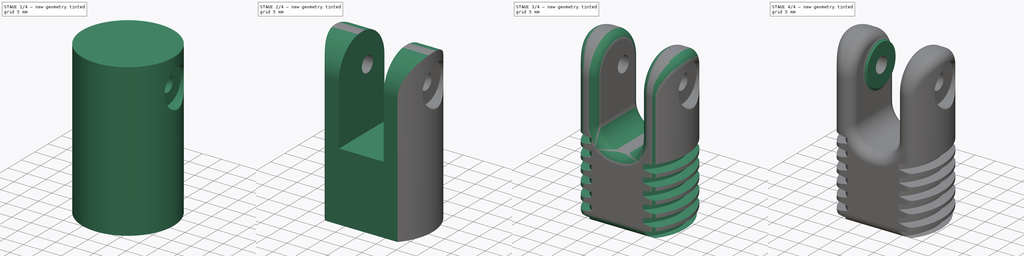
[diagram: build sequence overview — one tinted view per stage of 4, left to right]
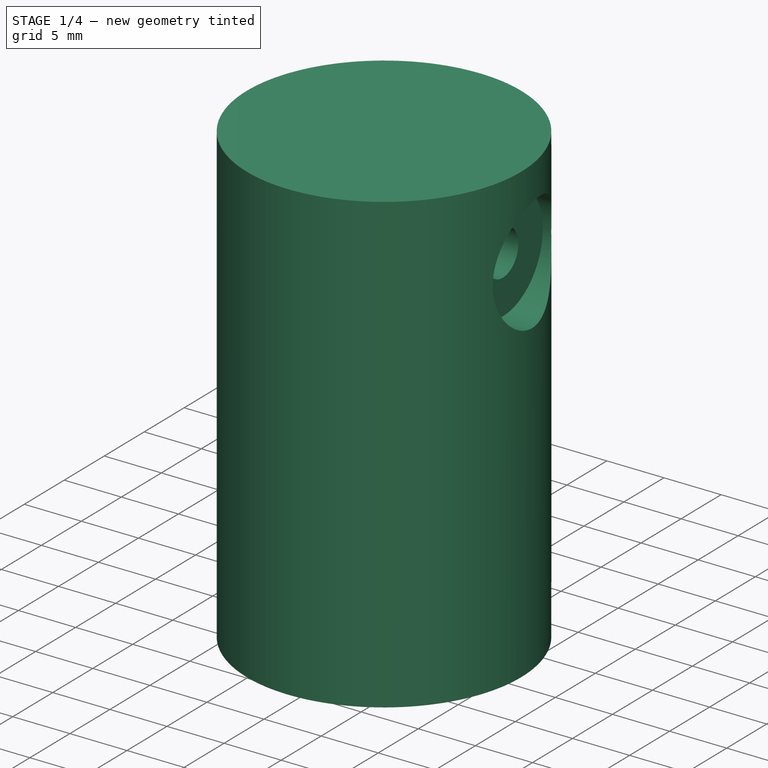
[diagram: stage 1 of 4 — iso view after this stage's code; geometry added in this stage tinted green]
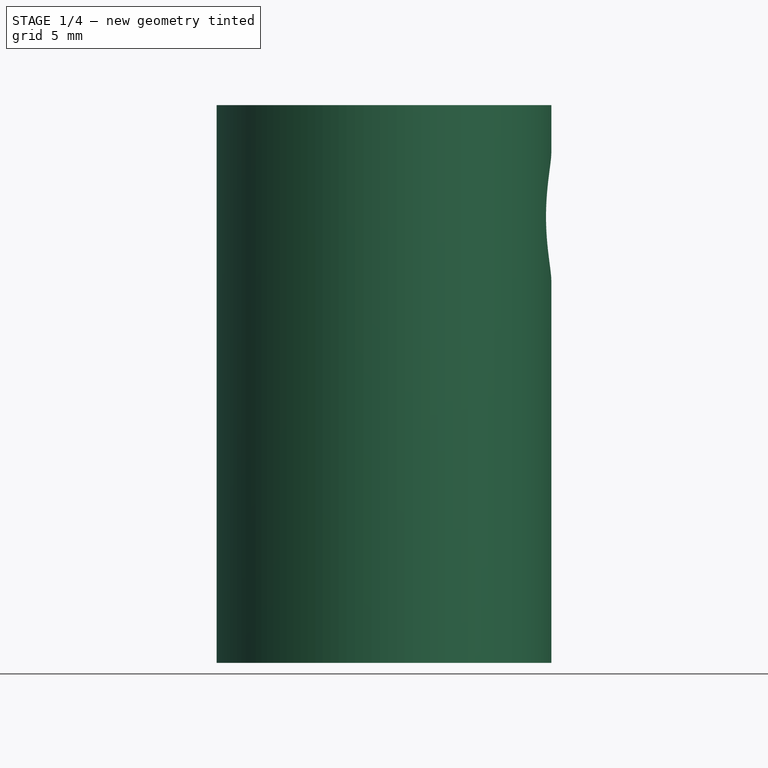
[diagram: stage 1 of 4 — front view after this stage's code; geometry added in this stage tinted green]
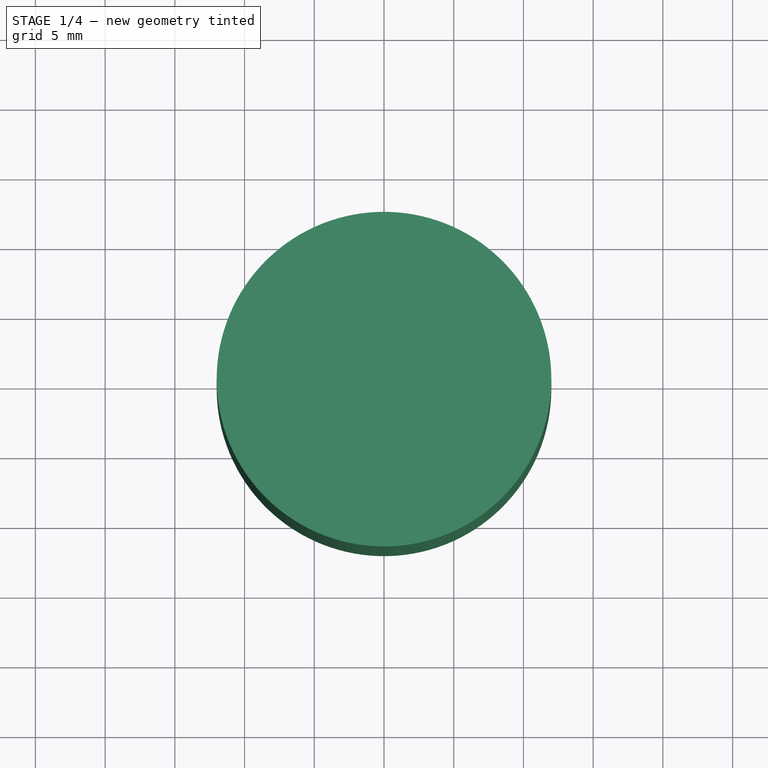
[diagram: stage 1 of 4 — top view after this stage's code; geometry added in this stage tinted green]
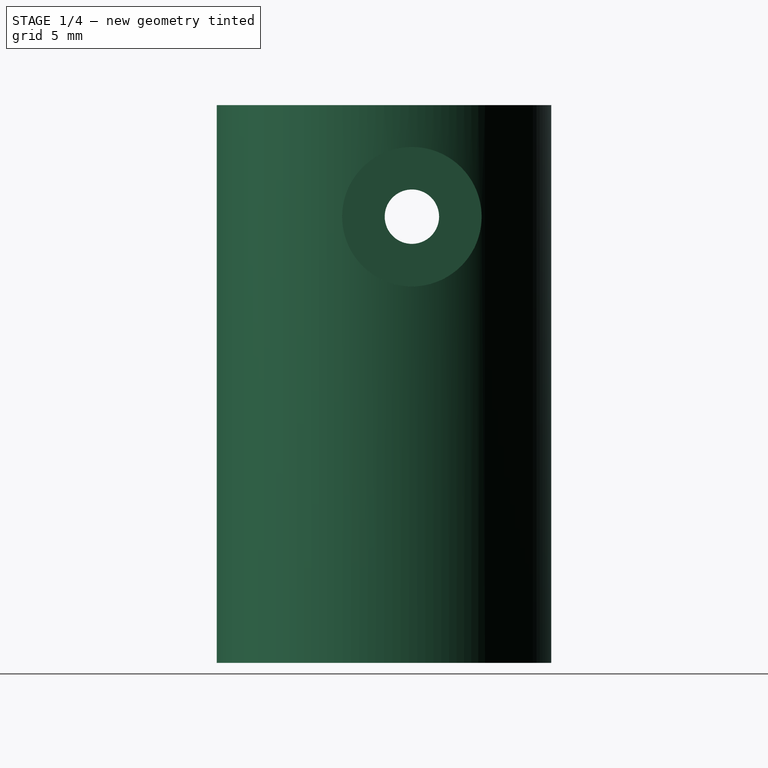
[diagram: stage 1 of 4 — right view after this stage's code; geometry added in this stage tinted green]
FCSTD DOCUMENT  (FreeCAD 1.1R)
Label: screw
License: All rights reserved
LicenseURL: https://en.wikipedia.org/wiki/All_rights_reserved
objects: Sketcher::SketchObject×8, PartDesign::Pocket×4, PartDesign::Fillet×4, PartDesign::Pad×3, App::Point×1, PartDesign::SubtractiveHelix×1, PartDesign::Body×1
note: 53 computed .brp shape members not serialized (recipe doc carries the construction recipe); baked Part::Feature solids carry a one-line shape summary decoded from their .brp

FEATURE [App::Point] Origin001
  Role = Origin
FEATURE [Sketcher::SketchObject] Sketch
  ArcFitTolerance = 1e-06
  AttachmentSupport = -> [Origin]
  ExternalTypes = [0]
  FullyConstrained = true
  MakeInternals = false
  MapMode = 5
  sketch-geometry (1):
    g0: Circle CenterX=0 CenterY=0 CenterZ=0 NormalX=0 NormalY=0 NormalZ=1 AngleXU=0 Radius=12
  constraints (2):
    c: Coincident(g0,g-1)
    c: Diameter(g0) = 24
FEATURE [PartDesign::Pad] Pad  label="base cylinder"
  Direction = (0,0,1)
  Length = 8
  Length2 = 32
  Profile = -> Sketch
  ReferenceAxis = -> Sketch [N_Axis]
  Refine = true
  SideType = 1
  Suppressed = false
  Type = 0
  Type2 = 0
FEATURE [Sketcher::SketchObject] Sketch001
  ArcFitTolerance = 1e-06
  AttachmentSupport = -> [Origin]
  ExternalTypes = [0]
  FullyConstrained = true
  MakeInternals = false
  MapMode = 5
  Placement = pos=(0,0,0) rot=(0.57735,0.57735,0.57735;2.0944rad)
  sketch-geometry (1):
    g0: Circle CenterX=2 CenterY=0 CenterZ=0 NormalX=0 NormalY=0 NormalZ=1 AngleXU=0 Radius=1.95
  constraints (3):
    c: Diameter(g0) = 3.9
    c: PointOnObject(g0,g-1)
    c: DistanceX(g-1,g0) = 2
FEATURE [PartDesign::Pocket] Pocket  label="M4 hole"
  BaseFeature = -> Pad
  Direction = (-1,0,0)
  Length = 63
  Length2 = 5
  Profile = -> Sketch001
  ReferenceAxis = -> Sketch001 [N_Axis]
  Refine = true
  SideType = 2
  Suppressed = false
  Type = 0
  Type2 = 0
FEATURE [Sketcher::SketchObject] Sketch002
  ArcFitTolerance = 1e-06
  AttachmentOffset = pos=(0,0,14) rot=(0,0,1;0rad)
  AttachmentSupport = -> [Origin]
  ExternalTypes = [0]
  FullyConstrained = true
  MakeInternals = false
  MapMode = 5
  Placement = pos=(14,0,0) rot=(0.57735,0.57735,0.57735;2.0944rad)
  sketch-geometry (1):
    g0: Circle CenterX=2 CenterY=0 CenterZ=0 NormalX=0 NormalY=0 NormalZ=1 AngleXU=0 Radius=5
  constraints (3):
    c: Diameter(g0) = 10
    c: PointOnObject(g0,g-1)
    c: DistanceX(g-1,g0) = 2
FEATURE [PartDesign::Pocket] Pocket001  label="M4 Head cavitiy"
  BaseFeature = -> Pocket
  Direction = (-1,0,0)
  Length = 5
  Length2 = 5
  Profile = -> Sketch002
  ReferenceAxis = -> Sketch002 [N_Axis]
  Refine = true
  SideType = 0
  Suppressed = false
  Type = 0
  Type2 = 0
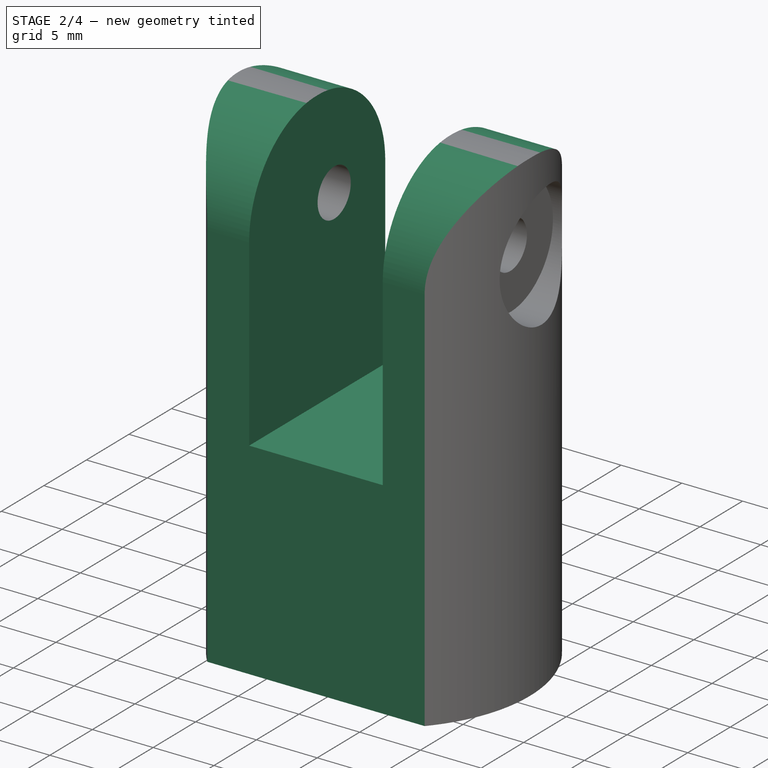
[diagram: stage 2 of 4 — iso view after this stage's code; geometry added in this stage tinted green]
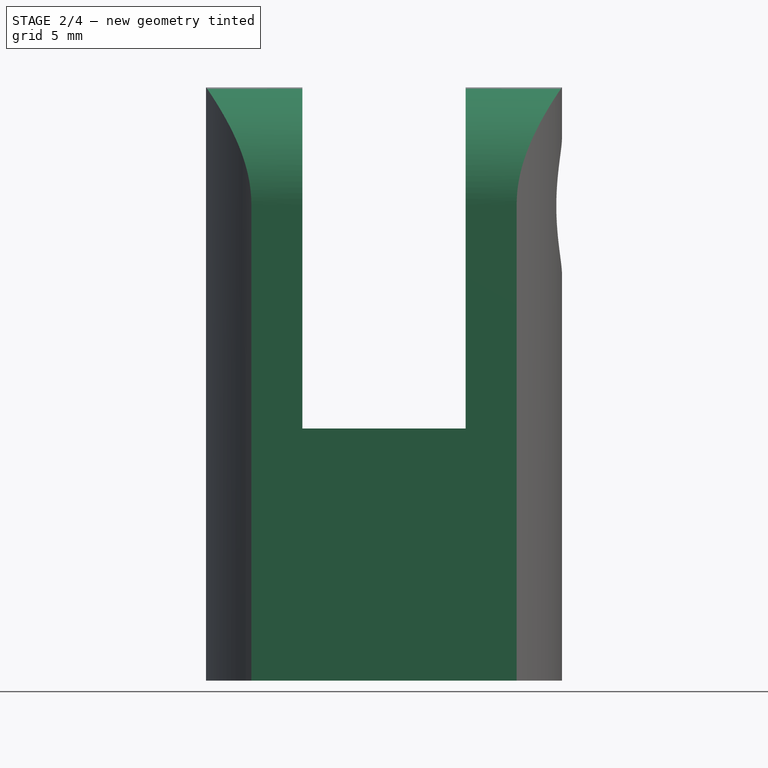
[diagram: stage 2 of 4 — front view after this stage's code; geometry added in this stage tinted green]
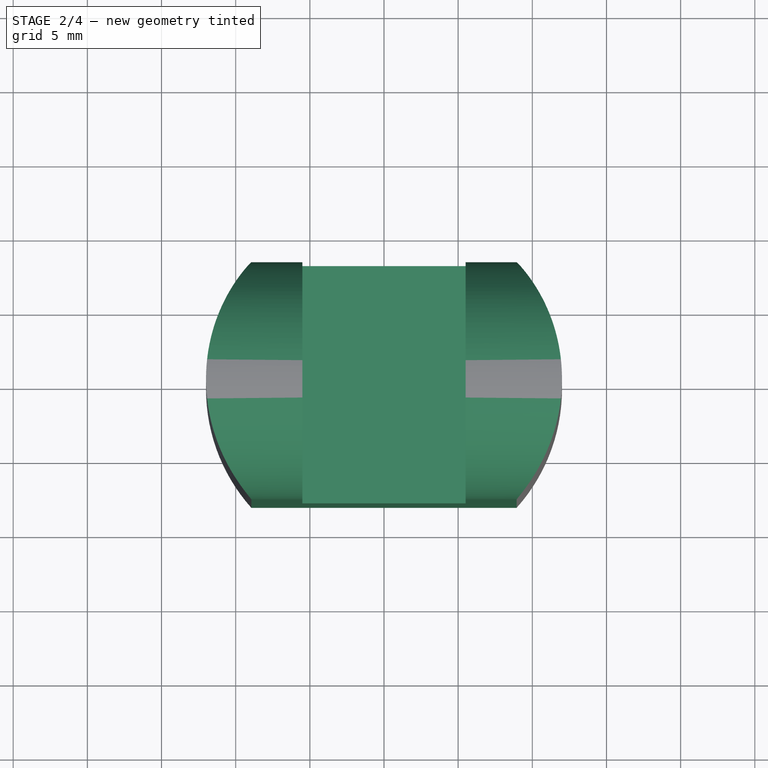
[diagram: stage 2 of 4 — top view after this stage's code; geometry added in this stage tinted green]
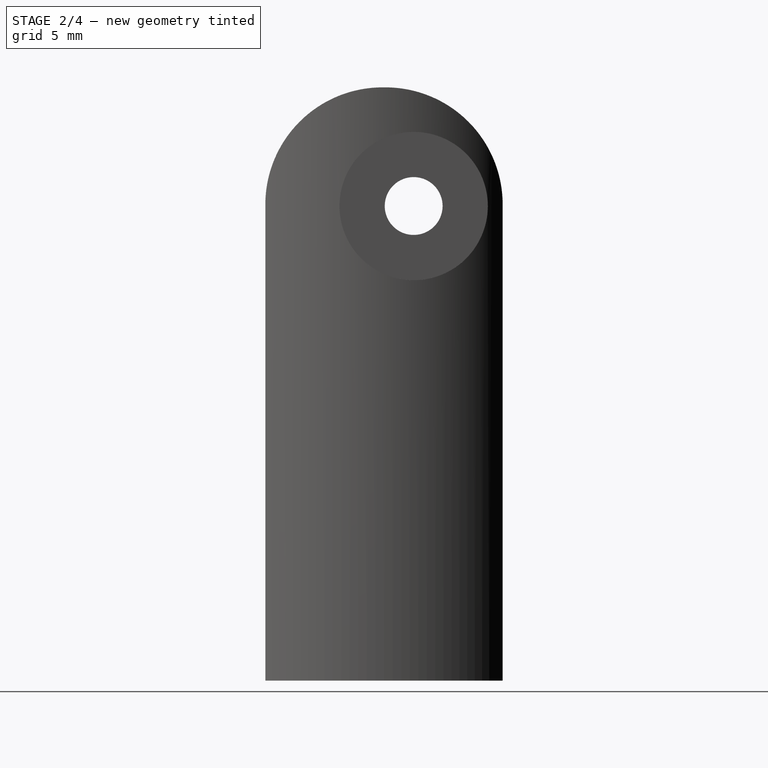
[diagram: stage 2 of 4 — right view after this stage's code; geometry added in this stage tinted green]
FEATURE [Sketcher::SketchObject] Sketch003
  ArcFitTolerance = 1e-06
  AttachmentSupport = -> [Origin]
  ExternalTypes = [0]
  FullyConstrained = true
  MakeInternals = false
  MapMode = 5
  sketch-geometry (4):
    g0: LineSegment StartX=-5.5 StartY=15 StartZ=0 EndX=-5.5 EndY=-15 EndZ=0
    g1: LineSegment StartX=-5.5 StartY=-15 StartZ=0 EndX=5.5 EndY=-15 EndZ=0
    g2: LineSegment StartX=5.5 StartY=-15 StartZ=0 EndX=5.5 EndY=15 EndZ=0
    g3: LineSegment StartX=5.5 StartY=15 StartZ=0 EndX=-5.5 EndY=15 EndZ=0
  constraints (10):
    c: Coincident(g0,g1)
    c: Coincident(g1,g2)
    c: Coincident(g2,g3)
    c: Coincident(g3,g0)
    c: Vertical(g2)
    c: Horizontal(g3)
    c: Symmetric(g1,g0,g-2)
    c: Symmetric(g0,g0,g-1)
    c: DistanceX(g3,g3) = 11
    c: DistanceY(g2,g2) = 30
FEATURE [PartDesign::Pocket] Pocket002  label="Bearing Cutout"
  BaseFeature = -> Pocket001
  Direction = (0,0,-1)
  Length = 15
  Length2 = 12
  Profile = -> Sketch003
  ReferenceAxis = -> Sketch003 [N_Axis]
  Refine = true
  SideType = 1
  Suppressed = false
  Type = 0
  Type2 = 0
FEATURE [Sketcher::SketchObject] Sketch004
  ArcFitTolerance = 1e-06
  AttachmentSupport = -> [Origin]
  ExternalTypes = [0]
  FullyConstrained = true
  MakeInternals = false
  MapMode = 5
  sketch-geometry (12):
    g0: LineSegment StartX=-12.5 StartY=8 StartZ=0 EndX=12.5 EndY=8 EndZ=0
    g1: LineSegment StartX=12.5 StartY=8 StartZ=0 EndX=17.183 EndY=0 EndZ=0
    g2: LineSegment StartX=17.183 StartY=0 StartZ=0 EndX=12.5 EndY=-8 EndZ=0
    g3: LineSegment StartX=12.5 StartY=-8 StartZ=0 EndX=-12.5 EndY=-8 EndZ=0
    g4: LineSegment StartX=-12.5 StartY=-8 StartZ=0 EndX=-17.183 EndY=0 EndZ=0
    g5: LineSegment StartX=-17.183 StartY=0 StartZ=0 EndX=-12.5 EndY=8 EndZ=0
    g6: LineSegment StartX=-24.408 StartY=0 StartZ=0 EndX=-12.141 EndY=20.9557 EndZ=0
    g7: LineSegment StartX=-12.141 StartY=20.9557 StartZ=0 EndX=12.141 EndY=20.9557 EndZ=0
    g8: LineSegment StartX=12.141 StartY=20.9557 StartZ=0 EndX=24.408 EndY=0 EndZ=0
    g9: LineSegment StartX=24.408 StartY=0 StartZ=0 EndX=12.141 EndY=-20.9557 EndZ=0
    g10: LineSegment StartX=12.141 StartY=-20.9557 StartZ=0 EndX=-12.141 EndY=-20.9557 EndZ=0
    g11: LineSegment StartX=-12.141 StartY=-20.9557 StartZ=0 EndX=-24.408 EndY=0 EndZ=0
  constraints (31):
    c: Coincident(g0,g1)
    c: PointOnObject(g1,g-1)
    c: Coincident(g1,g2)
    c: Coincident(g2,g3)
    c: Coincident(g3,g4)
    c: Coincident(g4,g5)
    c: Coincident(g5,g0)
    c: PointOnObject(g6,g-1)
    c: Coincident(g6,g7)
    c: Horizontal(g7)
    c: Coincident(g7,g8)
    c: Parallel(g8,g4)
    c: Coincident(g8,g9)
    c: Coincident(g9,g10)
    c: Horizontal(g10)
    c: Coincident(g10,g11)
    c: Coincident(g11,g6)
    c: Symmetric(g0,g3,g-1)
    c: Symmetric(g1,g4,g-2)
    c: DistanceX(g0,g0) = 25
    c: DistanceY(g3,g0) = 16
    c: Equal(g8,g9)
    c: Equal(g9,g10)
    c: Equal(g10,g11)
    c: Equal(g11,g6)
    c: Equal(g6,g7)
    c: Symmetric(g0,g0,g-2)
    c: Symmetric(g2,g3,g-2)
    c: DistanceX(g-1,g1) = 17.183
    c: DistanceX(g1,g8) = 7.225
    c: Symmetric(g8,g6,g-2)
FEATURE [PartDesign::Pocket] Pocket003  label="Rectangle cut"
  BaseFeature = -> Pocket002
  Direction = (0,0,-1)
  Length = 42
  Length2 = 15
  Profile = -> Sketch004
  ReferenceAxis = -> Sketch004 [N_Axis]
  Refine = true
  SideType = 1
  Suppressed = false
  Type = 0
  Type2 = 0
FEATURE [PartDesign::Fillet] Fillet  label="Top fillet"
  Base = -> Pocket003 [Edge11,Edge16,Edge20,Edge7]
  BaseFeature = -> Pocket003
  Radius = 7.9
  Refine = true
  SupportTransform = false
  Suppressed = false
  UseAllEdges = false
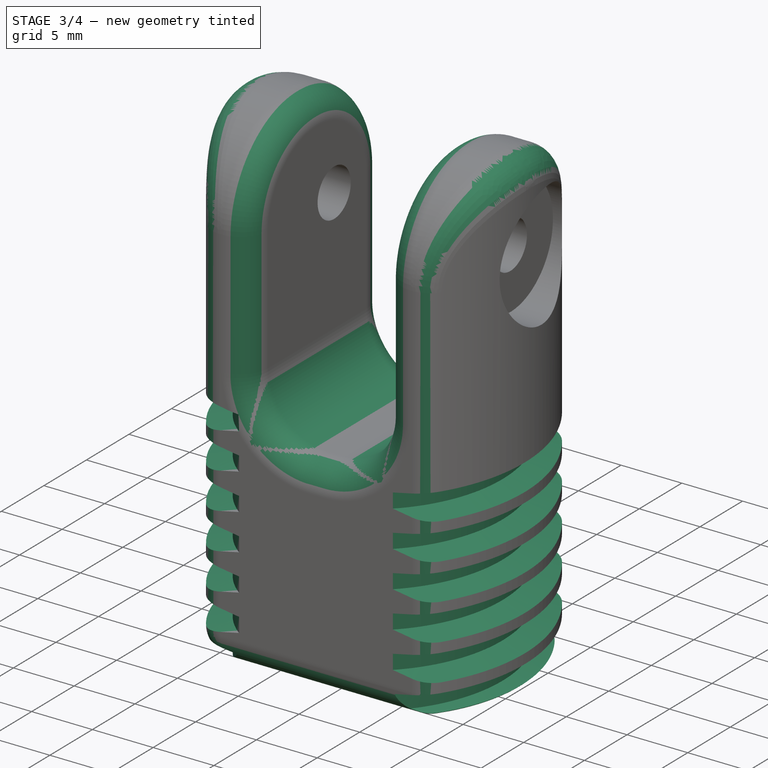
[diagram: stage 3 of 4 — iso view after this stage's code; geometry added in this stage tinted green]
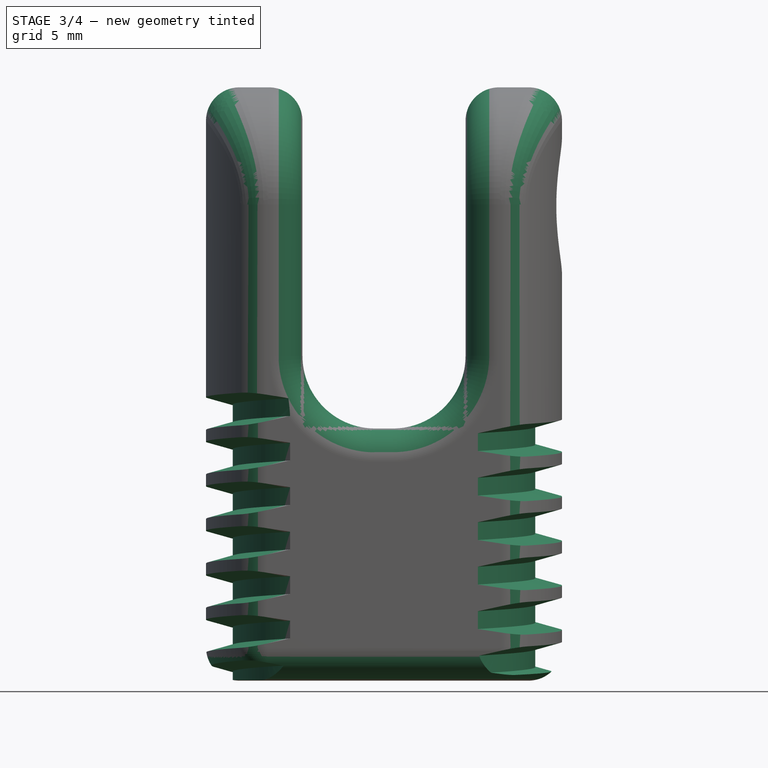
[diagram: stage 3 of 4 — front view after this stage's code; geometry added in this stage tinted green]
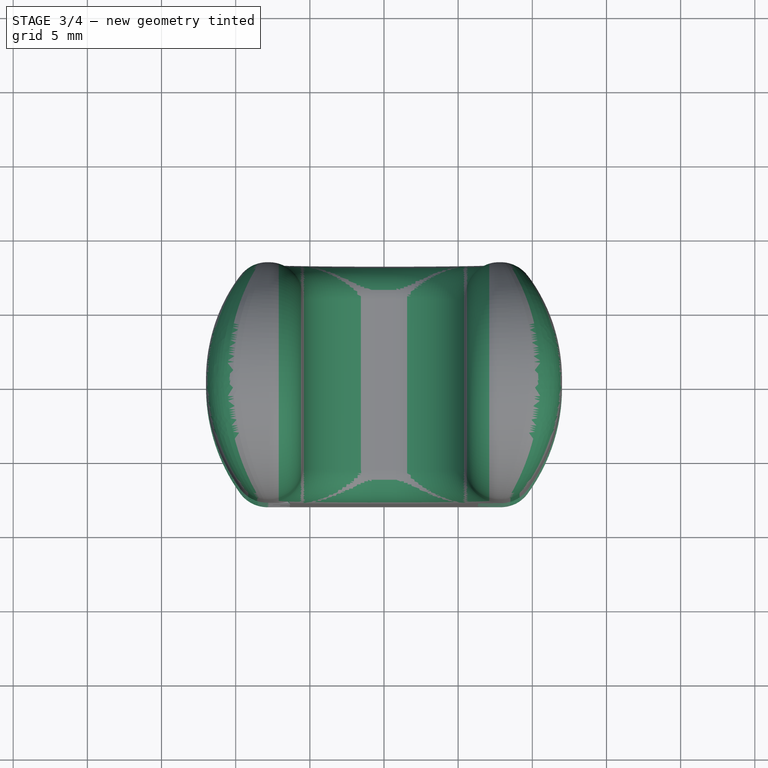
[diagram: stage 3 of 4 — top view after this stage's code; geometry added in this stage tinted green]
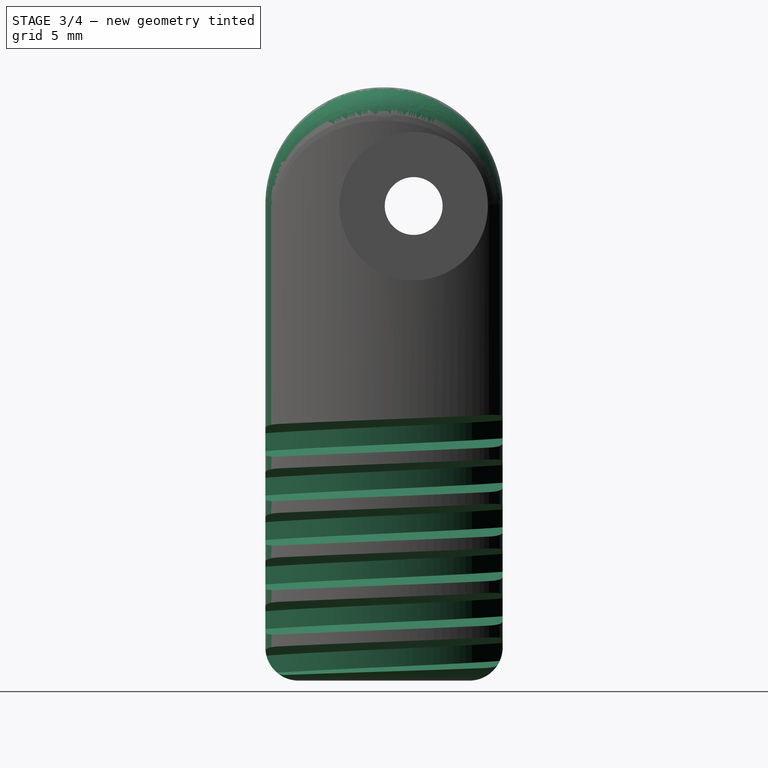
[diagram: stage 3 of 4 — right view after this stage's code; geometry added in this stage tinted green]
FEATURE [PartDesign::Fillet] Fillet001  label="Bearing cut Fillet"
  Base = -> Fillet [Edge34,Edge26]
  BaseFeature = -> Fillet
  Radius = 4.9
  Refine = true
  SupportTransform = false
  Suppressed = false
  UseAllEdges = false
FEATURE [PartDesign::Fillet] Fillet002  label="Outside"
  Base = -> Fillet001 [Edge41,Edge9,Edge43,Edge44,Edge23,Edge24,Edge19,Edge5,Edge7,Edge34,Edge35,Edge25,Edge27,Edge6,Edge2,Edge1,Edge13,Edge18,Edge32,Edge36,Edge37,Edge39]
  BaseFeature = -> Fillet001
  Radius = 2.25
  Refine = true
  SupportTransform = false
  Suppressed = false
  UseAllEdges = false
FEATURE [Sketcher::SketchObject] Sketch005
  ArcFitTolerance = 1e-06
  AttachmentOffset = pos=(0,-6,0) rot=(0,0,1;0rad)
  AttachmentSupport = -> [Origin]
  ExternalTypes = [0]
  FullyConstrained = true
  MakeInternals = false
  MapMode = 5
  Placement = pos=(0,-1.3e-15,-6) rot=(1,0,0;1.5708rad)
  sketch-geometry (4):
    g0: LineSegment StartX=12 StartY=-28.589 StartZ=0 EndX=10.2 EndY=-28.089 EndZ=0
    g1: LineSegment StartX=10.2 StartY=-28.089 StartZ=0 EndX=10.2 EndY=-26.889 EndZ=0
    g2: LineSegment StartX=10.2 StartY=-26.889 StartZ=0 EndX=12 EndY=-26.389 EndZ=0
    g3: LineSegment StartX=12 StartY=-26.389 StartZ=0 EndX=12 EndY=-28.589 EndZ=0
  constraints (12):
    c: Coincident(g0,g1)
    c: Vertical(g1)
    c: Coincident(g1,g2)
    c: Coincident(g2,g3)
    c: Coincident(g3,g0)
    c: Vertical(g3)
    c: DistanceY(g1,g1) = 1.2
    c: Equal(g2,g0)
    c: DistanceY(g3,g3) = 2.2
    c: Distance(g3,g1) = 1.8
    c: Distance(g-2,g1) = 10.2
    c: Distance(g1,g-1) = 26.889
FEATURE [PartDesign::SubtractiveHelix] SubtractiveHelix  label="Thread"
  Angle = 0
  Axis = (0,2e-16,1)
  Base = (0,-1.3e-15,-6)
  BaseFeature = -> Fillet002
  Growth = 0
  HasBeenEdited = true
  Height = 20.38
  LeftHanded = false
  Mode = 0
  Outside = false
  Pitch = 3
  Profile = -> Sketch005
  ReferenceAxis = -> Sketch005 [V_Axis]
  Refine = true
  Suppressed = false
  Tolerance = 0.1
  Turns = 6.79333
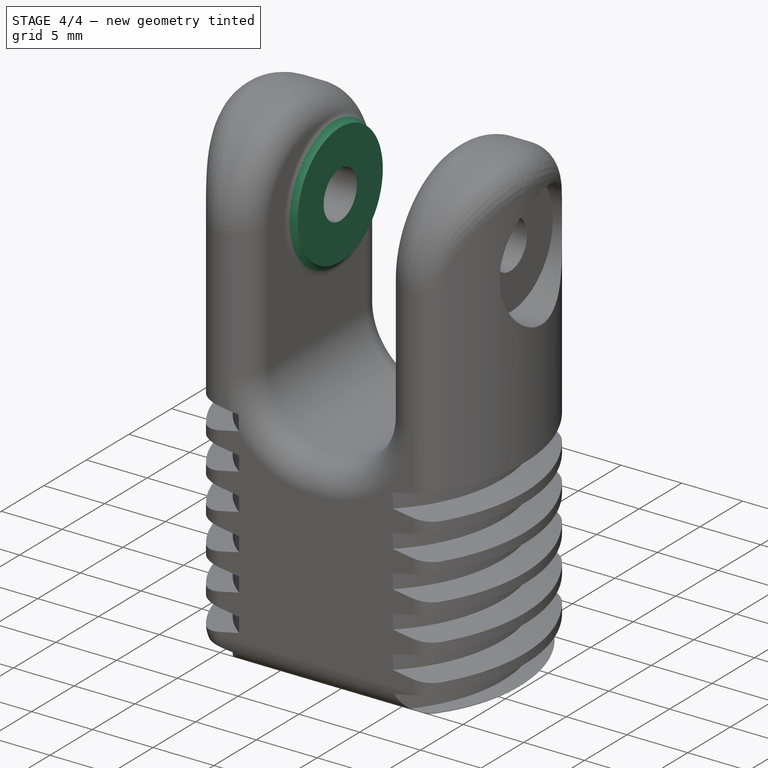
[diagram: stage 4 of 4 — iso view after this stage's code; geometry added in this stage tinted green]
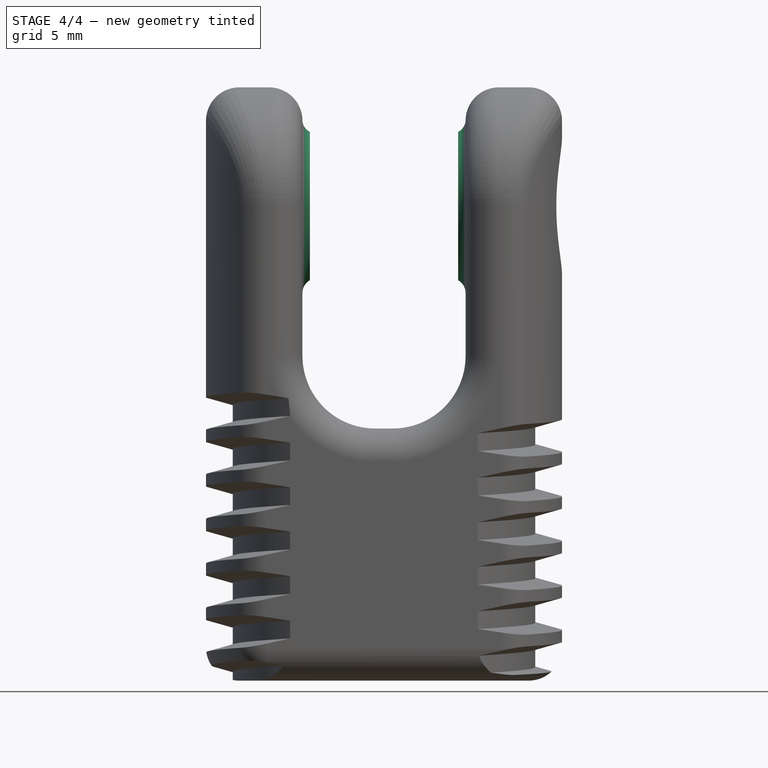
[diagram: stage 4 of 4 — front view after this stage's code; geometry added in this stage tinted green]
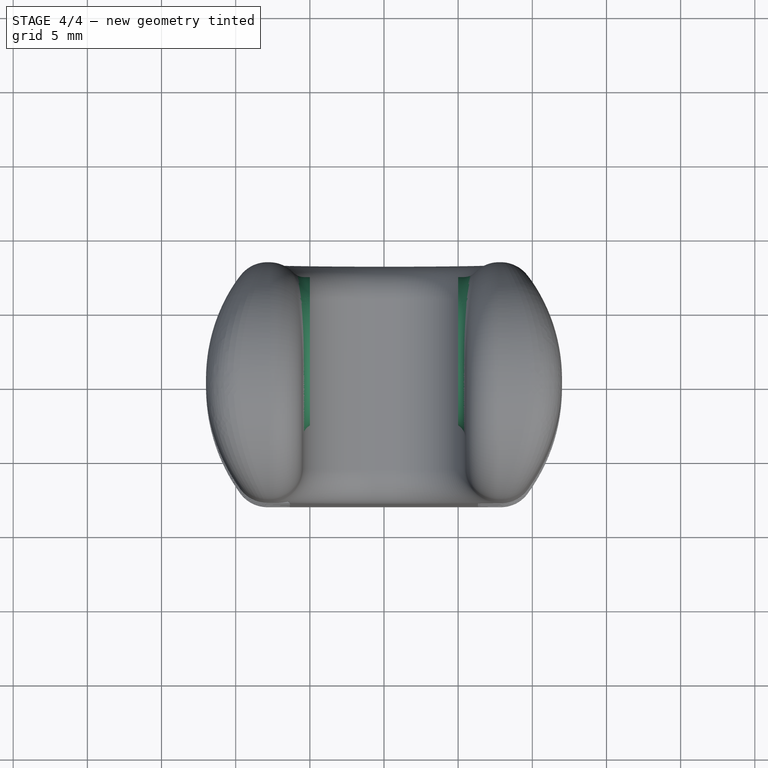
[diagram: stage 4 of 4 — top view after this stage's code; geometry added in this stage tinted green]
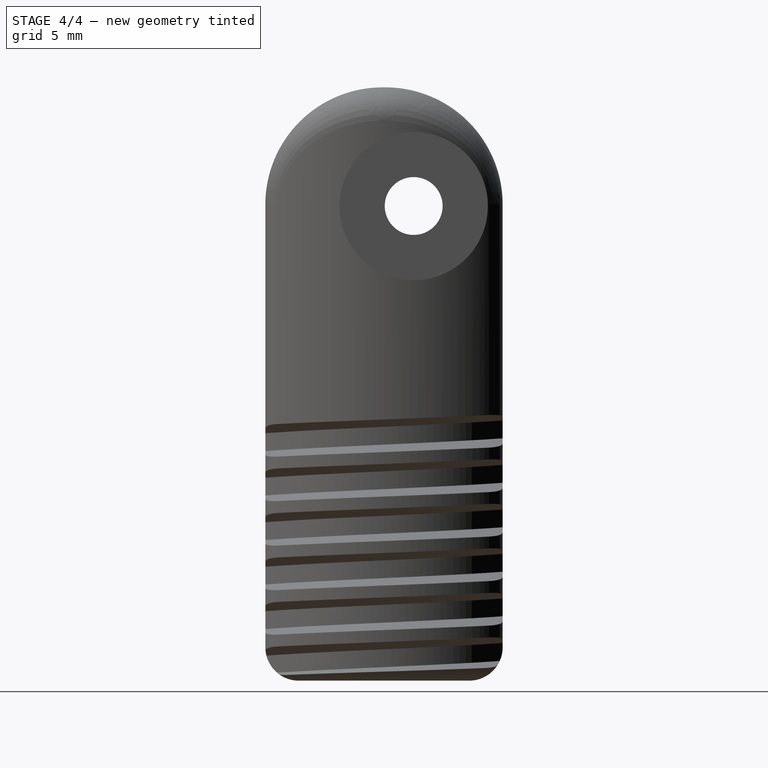
[diagram: stage 4 of 4 — right view after this stage's code; geometry added in this stage tinted green]
FEATURE [Sketcher::SketchObject] Sketch006
  ArcFitTolerance = 1e-06
  AttachmentOffset = pos=(0,0,5) rot=(0,0,1;0rad)
  AttachmentSupport = -> [Origin]
  ExternalTypes = [0]
  FullyConstrained = true
  MakeInternals = false
  MapMode = 5
  Placement = pos=(5,0,0) rot=(0.57735,0.57735,0.57735;2.0944rad)
  sketch-geometry (2):
    g0: Circle CenterX=2 CenterY=0 CenterZ=0 NormalX=0 NormalY=0 NormalZ=1 AngleXU=0 Radius=5
    g1: Circle CenterX=2 CenterY=0 CenterZ=0 NormalX=0 NormalY=0 NormalZ=1 AngleXU=0 Radius=1.95
  constraints (5):
    c: Diameter(g0) = 10
    c: PointOnObject(g0,g-1)
    c: DistanceX(g-1,g0) = 2
    c: Diameter(g1) = 3.9
    c: Coincident(g1,g0)
FEATURE [Sketcher::SketchObject] Sketch007
  ArcFitTolerance = 1e-06
  AttachmentOffset = pos=(0,0,-5) rot=(0,0,1;0rad)
  AttachmentSupport = -> [Origin]
  ExternalTypes = [0]
  FullyConstrained = true
  MakeInternals = false
  MapMode = 5
  Placement = pos=(-5,0,0) rot=(0.57735,0.57735,0.57735;2.0944rad)
  sketch-geometry (2):
    g0: Circle CenterX=2 CenterY=0 CenterZ=0 NormalX=0 NormalY=0 NormalZ=1 AngleXU=0 Radius=5
    g1: Circle CenterX=2 CenterY=0 CenterZ=0 NormalX=0 NormalY=0 NormalZ=1 AngleXU=0 Radius=1.95
  constraints (5):
    c: Diameter(g0) = 10
    c: PointOnObject(g0,g-1)
    c: DistanceX(g-1,g0) = 2
    c: Diameter(g1) = 3.9
    c: Coincident(g1,g0)
FEATURE [PartDesign::Pad] Pad001  label="Pad Bearing Head"
  BaseFeature = -> SubtractiveHelix
  Direction = (1,0,0)
  Length = 1
  Length2 = 10
  Profile = -> Sketch006
  ReferenceAxis = -> Sketch006 [N_Axis]
  Refine = true
  SideType = 0
  Suppressed = false
  Type = 0
  Type2 = 0
FEATURE [PartDesign::Pad] Pad002  label="Pad Bearing Tip"
  BaseFeature = -> Pad001
  Direction = (1,0,0)
  Length = 1
  Length2 = 10
  Profile = -> Sketch007
  ReferenceAxis = -> Sketch007 [N_Axis]
  Refine = true
  Reversed = true
  SideType = 0
  Suppressed = false
  Type = 0
  Type2 = 0
FEATURE [PartDesign::Fillet] Fillet003  label="Fillet Pads"
  Base = -> Pad002 [Edge352,Edge208,Edge401]
  BaseFeature = -> Pad002
  Radius = 1
  Refine = true
  SupportTransform = false
  Suppressed = false
  UseAllEdges = false
FEATURE [PartDesign::Body] Body  label="screw"
  AllowCompound = false
  Group = -> [Sketch,Pad,Sketch001,Pocket,Sketch002,Pocket001,Sketch003,Pocket002,Sketch004,Pocket003,Fillet,Fillet001,Fillet002,Sketch005,SubtractiveHelix,Sketch006,Sketch007,Pad001,Pad002,Fillet003]
  Origin = -> Origin
  Tip = -> Fillet003
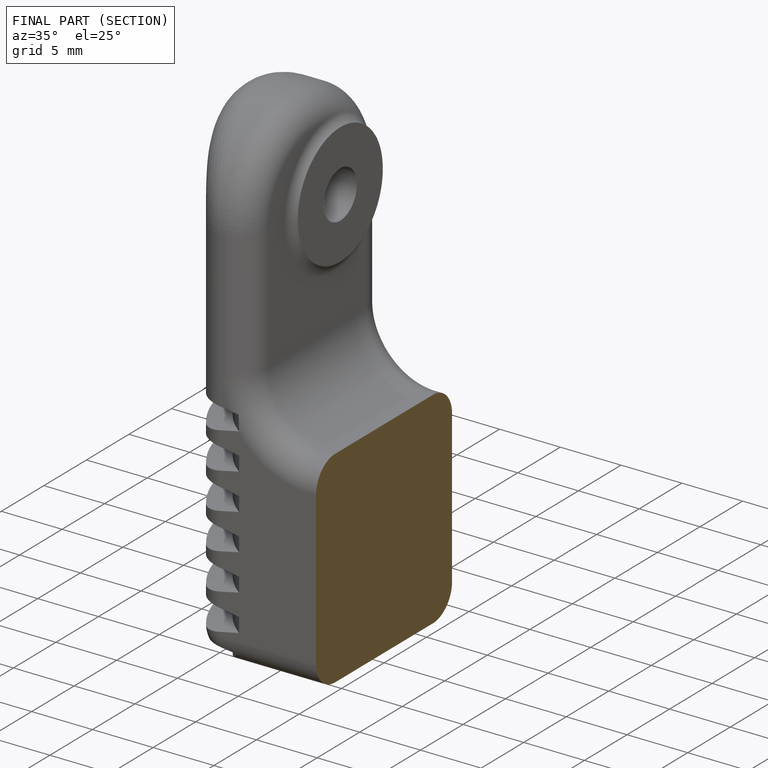
[diagram: finished part — half-section view (interior)]
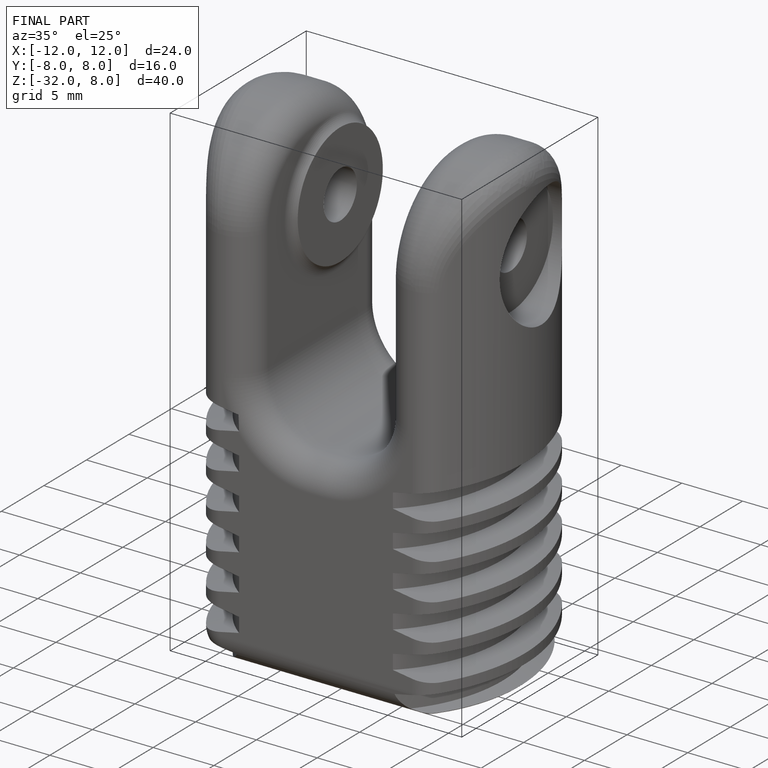
[diagram: finished part — iso view with bounding-box wireframe]
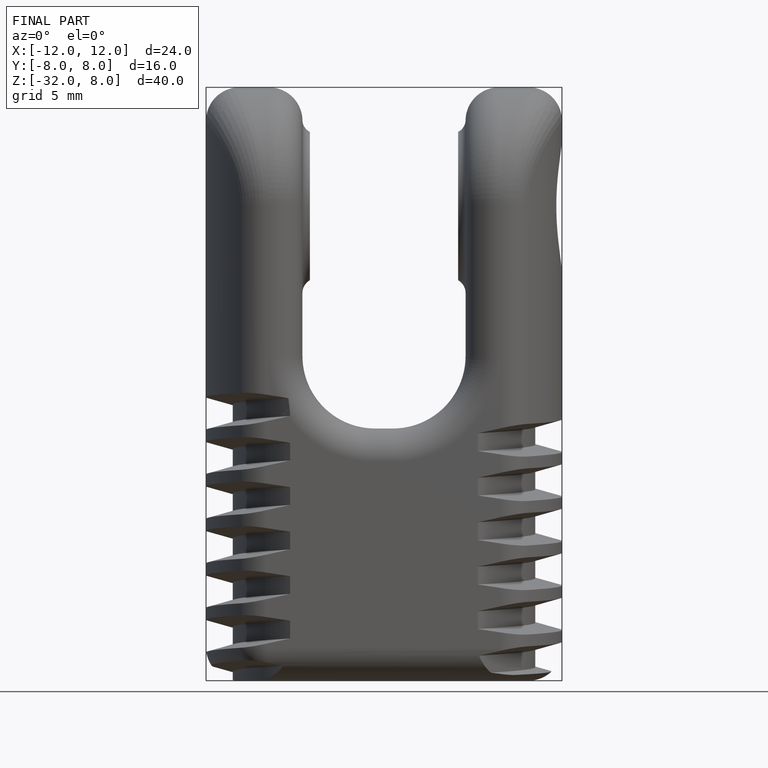
[diagram: finished part — front view with bounding-box wireframe]
